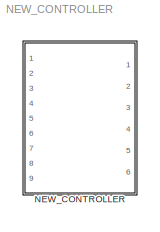
MODEL NEW_CONTROLLER
KIND model
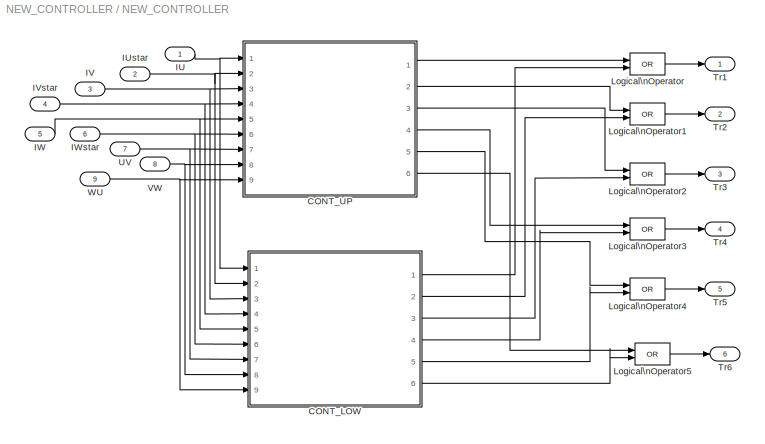
BLOCK [SubSystem] NEW_CONTROLLER
  Ports = [9, 6]
  RequestExecContextInheritance = off
  SID = 1
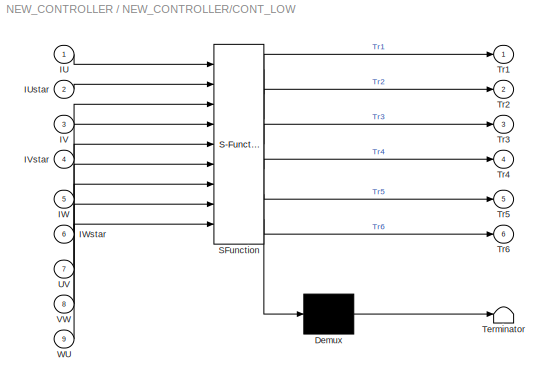
BLOCK [SubSystem] NEW_CONTROLLER/CONT_LOW
  ErrorFcn = Stateflow.Translate.translate
  PermitHierarchicalResolution = ExplicitOnly
  Ports = [9, 6]
  RequestExecContextInheritance = off
  SFBlockType = Chart
  SID = 11
  TreatAsAtomicUnit = on
BLOCK [Demux] NEW_CONTROLLER/CONT_LOW/ Demux 
  Outputs = 1
  Ports = [1, 1]
  SID = 11::20
BLOCK [S-Function] NEW_CONTROLLER/CONT_LOW/ SFunction 
  EnableBusSupport = off
  FunctionName = sf_sfun
  PortCounts = [9 7]
  Ports = [9, 7]
  SFcnIsStateOwnerBlock = off
  SFunctionDeploymentMode = off
  SID = 11::19
  Tag = Stateflow S-Function 1
BLOCK [Terminator] NEW_CONTROLLER/CONT_LOW/ Terminator 
  SID = 11::21
BLOCK [Inport] NEW_CONTROLLER/CONT_LOW/IU
  IconDisplay = Port number
  SID = 11::1
BLOCK [Inport] NEW_CONTROLLER/CONT_LOW/IUstar
  IconDisplay = Port number
  Port = 2
  SID = 11::2
BLOCK [Inport] NEW_CONTROLLER/CONT_LOW/IV
  IconDisplay = Port number
  Port = 3
  SID = 11::3
BLOCK [Inport] NEW_CONTROLLER/CONT_LOW/IVstar
  IconDisplay = Port number
  Port = 4
  SID = 11::4
BLOCK [Inport] NEW_CONTROLLER/CONT_LOW/IW
  IconDisplay = Port number
  Port = 5
  SID = 11::5
BLOCK [Inport] NEW_CONTROLLER/CONT_LOW/IWstar
  IconDisplay = Port number
  Port = 6
  SID = 11::6
BLOCK [Outport] NEW_CONTROLLER/CONT_LOW/Tr1
  IconDisplay = Port number
  SID = 11::13
BLOCK [Outport] NEW_CONTROLLER/CONT_LOW/Tr2
  IconDisplay = Port number
  Port = 2
  SID = 11::14
BLOCK [Outport] NEW_CONTROLLER/CONT_LOW/Tr3
  IconDisplay = Port number
  Port = 3
  SID = 11::15
BLOCK [Outport] NEW_CONTROLLER/CONT_LOW/Tr4
  IconDisplay = Port number
  Port = 4
  SID = 11::16
BLOCK [Outport] NEW_CONTROLLER/CONT_LOW/Tr5
  IconDisplay = Port number
  Port = 5
  SID = 11::17
BLOCK [Outport] NEW_CONTROLLER/CONT_LOW/Tr6
  IconDisplay = Port number
  Port = 6
  SID = 11::18
BLOCK [Inport] NEW_CONTROLLER/CONT_LOW/UV
  IconDisplay = Port number
  Port = 7
  SID = 11::7
BLOCK [Inport] NEW_CONTROLLER/CONT_LOW/VW
  IconDisplay = Port number
  Port = 8
  SID = 11::8
BLOCK [Inport] NEW_CONTROLLER/CONT_LOW/WU
  IconDisplay = Port number
  Port = 9
  SID = 11::9
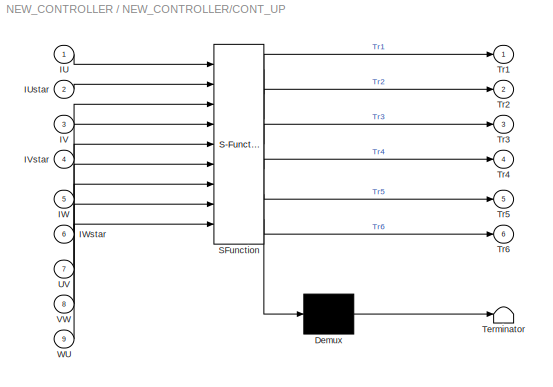
BLOCK [SubSystem] NEW_CONTROLLER/CONT_UP
  ErrorFcn = Stateflow.Translate.translate
  PermitHierarchicalResolution = ExplicitOnly
  Ports = [9, 6]
  RequestExecContextInheritance = off
  SFBlockType = Chart
  SID = 12
  TreatAsAtomicUnit = on
BLOCK [Demux] NEW_CONTROLLER/CONT_UP/ Demux 
  Outputs = 1
  Ports = [1, 1]
  SID = 12::20
BLOCK [S-Function] NEW_CONTROLLER/CONT_UP/ SFunction 
  EnableBusSupport = off
  FunctionName = sf_sfun
  PortCounts = [9 7]
  Ports = [9, 7]
  SFcnIsStateOwnerBlock = off
  SFunctionDeploymentMode = off
  SID = 12::19
  Tag = Stateflow S-Function 2
BLOCK [Terminator] NEW_CONTROLLER/CONT_UP/ Terminator 
  SID = 12::21
BLOCK [Inport] NEW_CONTROLLER/CONT_UP/IU
  IconDisplay = Port number
  SID = 12::1
BLOCK [Inport] NEW_CONTROLLER/CONT_UP/IUstar
  IconDisplay = Port number
  Port = 2
  SID = 12::2
BLOCK [Inport] NEW_CONTROLLER/CONT_UP/IV
  IconDisplay = Port number
  Port = 3
  SID = 12::3
BLOCK [Inport] NEW_CONTROLLER/CONT_UP/IVstar
  IconDisplay = Port number
  Port = 4
  SID = 12::4
BLOCK [Inport] NEW_CONTROLLER/CONT_UP/IW
  IconDisplay = Port number
  Port = 5
  SID = 12::5
BLOCK [Inport] NEW_CONTROLLER/CONT_UP/IWstar
  IconDisplay = Port number
  Port = 6
  SID = 12::6
BLOCK [Outport] NEW_CONTROLLER/CONT_UP/Tr1
  IconDisplay = Port number
  SID = 12::13
BLOCK [Outport] NEW_CONTROLLER/CONT_UP/Tr2
  IconDisplay = Port number
  Port = 2
  SID = 12::14
BLOCK [Outport] NEW_CONTROLLER/CONT_UP/Tr3
  IconDisplay = Port number
  Port = 3
  SID = 12::15
BLOCK [Outport] NEW_CONTROLLER/CONT_UP/Tr4
  IconDisplay = Port number
  Port = 4
  SID = 12::16
BLOCK [Outport] NEW_CONTROLLER/CONT_UP/Tr5
  IconDisplay = Port number
  Port = 5
  SID = 12::17
BLOCK [Outport] NEW_CONTROLLER/CONT_UP/Tr6
  IconDisplay = Port number
  Port = 6
  SID = 12::18
BLOCK [Inport] NEW_CONTROLLER/CONT_UP/UV
  IconDisplay = Port number
  Port = 7
  SID = 12::7
BLOCK [Inport] NEW_CONTROLLER/CONT_UP/VW
  IconDisplay = Port number
  Port = 8
  SID = 12::8
BLOCK [Inport] NEW_CONTROLLER/CONT_UP/WU
  IconDisplay = Port number
  Port = 9
  SID = 12::9
BLOCK [Inport] NEW_CONTROLLER/IU
  IconDisplay = Port number
  SID = 2
BLOCK [Inport] NEW_CONTROLLER/IUstar
  IconDisplay = Port number
  Port = 2
  SID = 3
BLOCK [Inport] NEW_CONTROLLER/IV
  IconDisplay = Port number
  Port = 3
  SID = 4
BLOCK [Inport] NEW_CONTROLLER/IVstar
  IconDisplay = Port number
  Port = 4
  SID = 5
BLOCK [Inport] NEW_CONTROLLER/IW
  IconDisplay = Port number
  Port = 5
  SID = 6
BLOCK [Inport] NEW_CONTROLLER/IWstar
  IconDisplay = Port number
  Port = 6
  SID = 7
BLOCK [Logic] NEW_CONTROLLER/Logical\nOperator
  AllPortsSameDT = off
  Operator = OR
  Ports = [2, 1]
  SID = 13
BLOCK [Logic] NEW_CONTROLLER/Logical\nOperator1
  AllPortsSameDT = off
  Operator = OR
  Ports = [2, 1]
  SID = 14
BLOCK [Logic] NEW_CONTROLLER/Logical\nOperator2
  AllPortsSameDT = off
  Operator = OR
  Ports = [2, 1]
  SID = 15
BLOCK [Logic] NEW_CONTROLLER/Logical\nOperator3
  AllPortsSameDT = off
  Operator = OR
  Ports = [2, 1]
  SID = 16
BLOCK [Logic] NEW_CONTROLLER/Logical\nOperator4
  AllPortsSameDT = off
  Operator = OR
  Ports = [2, 1]
  SID = 17
BLOCK [Logic] NEW_CONTROLLER/Logical\nOperator5
  AllPortsSameDT = off
  Operator = OR
  Ports = [2, 1]
  SID = 18
BLOCK [Outport] NEW_CONTROLLER/Tr1
  IconDisplay = Port number
  SID = 19
BLOCK [Outport] NEW_CONTROLLER/Tr2
  IconDisplay = Port number
  Port = 2
  SID = 20
BLOCK [Outport] NEW_CONTROLLER/Tr3
  IconDisplay = Port number
  Port = 3
  SID = 21
BLOCK [Outport] NEW_CONTROLLER/Tr4
  IconDisplay = Port number
  Port = 4
  SID = 22
BLOCK [Outport] NEW_CONTROLLER/Tr5
  IconDisplay = Port number
  Port = 5
  SID = 23
BLOCK [Outport] NEW_CONTROLLER/Tr6
  IconDisplay = Port number
  Port = 6
  SID = 24
BLOCK [Inport] NEW_CONTROLLER/UV
  IconDisplay = Port number
  Port = 7
  SID = 8
BLOCK [Inport] NEW_CONTROLLER/VW
  IconDisplay = Port number
  Port = 8
  SID = 9
BLOCK [Inport] NEW_CONTROLLER/WU
  IconDisplay = Port number
  Port = 9
  SID = 10
LINE NEW_CONTROLLER/CONT_LOW/ Demux :1 -> NEW_CONTROLLER/CONT_LOW/ Terminator :1
LINE NEW_CONTROLLER/CONT_LOW/ SFunction :1 -> NEW_CONTROLLER/CONT_LOW/ Demux :1
LINE NEW_CONTROLLER/CONT_LOW/ SFunction :2 -> NEW_CONTROLLER/CONT_LOW/Tr1:1
LINE NEW_CONTROLLER/CONT_LOW/ SFunction :3 -> NEW_CONTROLLER/CONT_LOW/Tr2:1
LINE NEW_CONTROLLER/CONT_LOW/ SFunction :4 -> NEW_CONTROLLER/CONT_LOW/Tr3:1
LINE NEW_CONTROLLER/CONT_LOW/ SFunction :5 -> NEW_CONTROLLER/CONT_LOW/Tr4:1
LINE NEW_CONTROLLER/CONT_LOW/ SFunction :6 -> NEW_CONTROLLER/CONT_LOW/Tr5:1
LINE NEW_CONTROLLER/CONT_LOW/ SFunction :7 -> NEW_CONTROLLER/CONT_LOW/Tr6:1
LINE NEW_CONTROLLER/CONT_LOW/IU:1 -> NEW_CONTROLLER/CONT_LOW/ SFunction :1
LINE NEW_CONTROLLER/CONT_LOW/IUstar:1 -> NEW_CONTROLLER/CONT_LOW/ SFunction :2
LINE NEW_CONTROLLER/CONT_LOW/IV:1 -> NEW_CONTROLLER/CONT_LOW/ SFunction :3
LINE NEW_CONTROLLER/CONT_LOW/IVstar:1 -> NEW_CONTROLLER/CONT_LOW/ SFunction :4
LINE NEW_CONTROLLER/CONT_LOW/IW:1 -> NEW_CONTROLLER/CONT_LOW/ SFunction :5
LINE NEW_CONTROLLER/CONT_LOW/IWstar:1 -> NEW_CONTROLLER/CONT_LOW/ SFunction :6
LINE NEW_CONTROLLER/CONT_LOW/UV:1 -> NEW_CONTROLLER/CONT_LOW/ SFunction :7
LINE NEW_CONTROLLER/CONT_LOW/VW:1 -> NEW_CONTROLLER/CONT_LOW/ SFunction :8
LINE NEW_CONTROLLER/CONT_LOW/WU:1 -> NEW_CONTROLLER/CONT_LOW/ SFunction :9
LINE NEW_CONTROLLER/CONT_LOW:1 -> NEW_CONTROLLER/Logical\nOperator:2
LINE NEW_CONTROLLER/CONT_LOW:2 -> NEW_CONTROLLER/Logical\nOperator1:2
LINE NEW_CONTROLLER/CONT_LOW:3 -> NEW_CONTROLLER/Logical\nOperator2:2
LINE NEW_CONTROLLER/CONT_LOW:4 -> NEW_CONTROLLER/Logical\nOperator3:2
LINE NEW_CONTROLLER/CONT_LOW:5 -> NEW_CONTROLLER/Logical\nOperator4:2
LINE NEW_CONTROLLER/CONT_LOW:6 -> NEW_CONTROLLER/Logical\nOperator5:2
LINE NEW_CONTROLLER/CONT_UP/ Demux :1 -> NEW_CONTROLLER/CONT_UP/ Terminator :1
LINE NEW_CONTROLLER/CONT_UP/ SFunction :1 -> NEW_CONTROLLER/CONT_UP/ Demux :1
LINE NEW_CONTROLLER/CONT_UP/ SFunction :2 -> NEW_CONTROLLER/CONT_UP/Tr1:1
LINE NEW_CONTROLLER/CONT_UP/ SFunction :3 -> NEW_CONTROLLER/CONT_UP/Tr2:1
LINE NEW_CONTROLLER/CONT_UP/ SFunction :4 -> NEW_CONTROLLER/CONT_UP/Tr3:1
LINE NEW_CONTROLLER/CONT_UP/ SFunction :5 -> NEW_CONTROLLER/CONT_UP/Tr4:1
LINE NEW_CONTROLLER/CONT_UP/ SFunction :6 -> NEW_CONTROLLER/CONT_UP/Tr5:1
LINE NEW_CONTROLLER/CONT_UP/ SFunction :7 -> NEW_CONTROLLER/CONT_UP/Tr6:1
LINE NEW_CONTROLLER/CONT_UP/IU:1 -> NEW_CONTROLLER/CONT_UP/ SFunction :1
LINE NEW_CONTROLLER/CONT_UP/IUstar:1 -> NEW_CONTROLLER/CONT_UP/ SFunction :2
LINE NEW_CONTROLLER/CONT_UP/IV:1 -> NEW_CONTROLLER/CONT_UP/ SFunction :3
LINE NEW_CONTROLLER/CONT_UP/IVstar:1 -> NEW_CONTROLLER/CONT_UP/ SFunction :4
LINE NEW_CONTROLLER/CONT_UP/IW:1 -> NEW_CONTROLLER/CONT_UP/ SFunction :5
LINE NEW_CONTROLLER/CONT_UP/IWstar:1 -> NEW_CONTROLLER/CONT_UP/ SFunction :6
LINE NEW_CONTROLLER/CONT_UP/UV:1 -> NEW_CONTROLLER/CONT_UP/ SFunction :7
LINE NEW_CONTROLLER/CONT_UP/VW:1 -> NEW_CONTROLLER/CONT_UP/ SFunction :8
LINE NEW_CONTROLLER/CONT_UP/WU:1 -> NEW_CONTROLLER/CONT_UP/ SFunction :9
LINE NEW_CONTROLLER/CONT_UP:1 -> NEW_CONTROLLER/Logical\nOperator:1
LINE NEW_CONTROLLER/CONT_UP:2 -> NEW_CONTROLLER/Logical\nOperator1:1
LINE NEW_CONTROLLER/CONT_UP:3 -> NEW_CONTROLLER/Logical\nOperator2:1
LINE NEW_CONTROLLER/CONT_UP:4 -> NEW_CONTROLLER/Logical\nOperator3:1
LINE NEW_CONTROLLER/CONT_UP:5 -> NEW_CONTROLLER/Logical\nOperator4:1
LINE NEW_CONTROLLER/CONT_UP:6 -> NEW_CONTROLLER/Logical\nOperator5:1
NET NEW_CONTROLLER/IU:1 -> NEW_CONTROLLER/CONT_LOW:1, NEW_CONTROLLER/CONT_UP:1
NET NEW_CONTROLLER/IUstar:1 -> NEW_CONTROLLER/CONT_LOW:2, NEW_CONTROLLER/CONT_UP:2
NET NEW_CONTROLLER/IV:1 -> NEW_CONTROLLER/CONT_LOW:3, NEW_CONTROLLER/CONT_UP:3
NET NEW_CONTROLLER/IVstar:1 -> NEW_CONTROLLER/CONT_LOW:4, NEW_CONTROLLER/CONT_UP:4
NET NEW_CONTROLLER/IW:1 -> NEW_CONTROLLER/CONT_LOW:5, NEW_CONTROLLER/CONT_UP:5
NET NEW_CONTROLLER/IWstar:1 -> NEW_CONTROLLER/CONT_LOW:6, NEW_CONTROLLER/CONT_UP:6
LINE NEW_CONTROLLER/Logical\nOperator1:1 -> NEW_CONTROLLER/Tr2:1
LINE NEW_CONTROLLER/Logical\nOperator2:1 -> NEW_CONTROLLER/Tr3:1
LINE NEW_CONTROLLER/Logical\nOperator3:1 -> NEW_CONTROLLER/Tr4:1
LINE NEW_CONTROLLER/Logical\nOperator4:1 -> NEW_CONTROLLER/Tr5:1
LINE NEW_CONTROLLER/Logical\nOperator5:1 -> NEW_CONTROLLER/Tr6:1
LINE NEW_CONTROLLER/Logical\nOperator:1 -> NEW_CONTROLLER/Tr1:1
NET NEW_CONTROLLER/UV:1 -> NEW_CONTROLLER/CONT_LOW:7, NEW_CONTROLLER/CONT_UP:7
NET NEW_CONTROLLER/VW:1 -> NEW_CONTROLLER/CONT_LOW:8, NEW_CONTROLLER/CONT_UP:8
NET NEW_CONTROLLER/WU:1 -> NEW_CONTROLLER/CONT_LOW:9, NEW_CONTROLLER/CONT_UP:9
note: NET lines group one-source signal fan-out (src -> all destinations, sorted); 1:1 wires keep LINE
CHART NEW_CONTROLLER/CONT_LOW states=18 transitions=25
  STATE_LABEL 'A/'
  STATE_LABEL 'A1/\\nduring: Tr1=0;Tr3=0;Tr4=0;\\nTr2=0;Tr5=0;Tr6=0;'
  STATE_LABEL 'A2/\\nduring: Tr1=0; Tr3=0; Tr4=0; Tr2=0; Tr5=0;\\nTr6=1;'
  STATE_LABEL 'B/'
  STATE_LABEL 'B1/\\nduring: Tr3=0;Tr5=0;Tr4=0;Tr2=0;\\nTr1=0; Tr6=0;'
  STATE_LABEL 'B2/\\nduring:Tr3=0;Tr5=0;Tr4=0;Tr2=0;\\nTr1=0; Tr6=1;'
  STATE_LABEL 'C/'
  STATE_LABEL 'C1/\\nduring: Tr3=0;Tr5=0;Tr4=0;Tr2=0;\\nTr1=0; Tr6=0;'
  STATE_LABEL 'C2/\\nduring: Tr3=0;Tr5=0; Tr4=0; Tr6=0;\\nTr1=0; Tr2=1;'
  STATE_LABEL 'D/'
  STATE_LABEL 'D1/\\nduring: Tr3=0;Tr5=0;Tr4=0;Tr2=0;\\nTr1=0; Tr6=0;'
  STATE_LABEL 'D2/\\nduring: Tr1=0; Tr5=0;Tr4=0; Tr6=0;\\nTr3=0; Tr2=1;'
  STATE_LABEL 'E/'
  STATE_LABEL 'E1/\\nduring: Tr3=0;Tr5=0;Tr4=0;Tr2=0;\\nTr1=0; Tr6=0;'
  STATE_LABEL 'E2/\\nduring: Tr1=0; Tr5=0; Tr6=0; Tr2=0;\\nTr3=0; Tr4=1;'
  STATE_LABEL 'F/'
  STATE_LABEL 'F1/\\nduring: Tr3=0;Tr5=0;Tr4=0;Tr2=0;\\nTr1=0; Tr6=0;'
  STATE_LABEL 'F2/\\nduring: Tr1=0; Tr3=0; Tr6=0; Tr2=0;\\nTr5=0; Tr4=1;'
CHART NEW_CONTROLLER/CONT_UP states=18 transitions=25
  STATE_LABEL 'A/'
  STATE_LABEL 'A11/\\nduring:Tr1=0;Tr1=0;Tr2=0;Tr3=0;Tr4=0;Tr5=0;\\nTr6=0;'
  STATE_LABEL 'A2/\\nduring: Tr1=0; Tr3=0; Tr4=0; Tr2=0; Tr5=1;\\nTr6=0;'
  STATE_LABEL 'B/'
  STATE_LABEL 'B1/\\nduring: Tr3=0;Tr5=0;Tr4=0;Tr2=0;\\nTr1=0; Tr6=0;'
  STATE_LABEL 'B2/\\nduring:Tr3=0;Tr5=0;Tr4=0;Tr2=0;\\nTr1=1; Tr6=0;'
  STATE_LABEL 'C/'
  STATE_LABEL 'C1/\\nduring: Tr3=0;Tr5=0;Tr4=0;Tr2=0;\\nTr1=0; Tr6=0;'
  STATE_LABEL 'C2/\\nduring: Tr3=0;Tr5=0; Tr4=0; Tr6=0;\\nTr1=1; Tr2=0;'
  STATE_LABEL 'D/'
  STATE_LABEL 'D1/\\nduring: Tr3=0;Tr5=0;Tr4=0;Tr2=0;\\nTr1=0; Tr6=0;'
  STATE_LABEL 'D2/\\nduring: Tr1=0; Tr5=0;Tr4=0; Tr6=0;\\nTr3=1; Tr2=0;'
  STATE_LABEL 'E/'
  STATE_LABEL 'E1/\\nduring: Tr3=0;Tr5=0;Tr4=0;Tr2=0;\\nTr1=0; Tr6=0;'
  STATE_LABEL 'E2/\\nduring: Tr1=0; Tr5=0; Tr6=0; Tr2=0;\\nTr3=1; Tr4=0;'
  STATE_LABEL 'F/'
  STATE_LABEL 'F1/\\nduring: Tr3=0;Tr5=0;Tr4=0;Tr2=0;\\nTr1=0; Tr6=0;'
  STATE_LABEL 'F2/\\nduring: Tr1=0; Tr3=0; Tr6=0; Tr2=0;\\nTr5=1; Tr4=0;'
